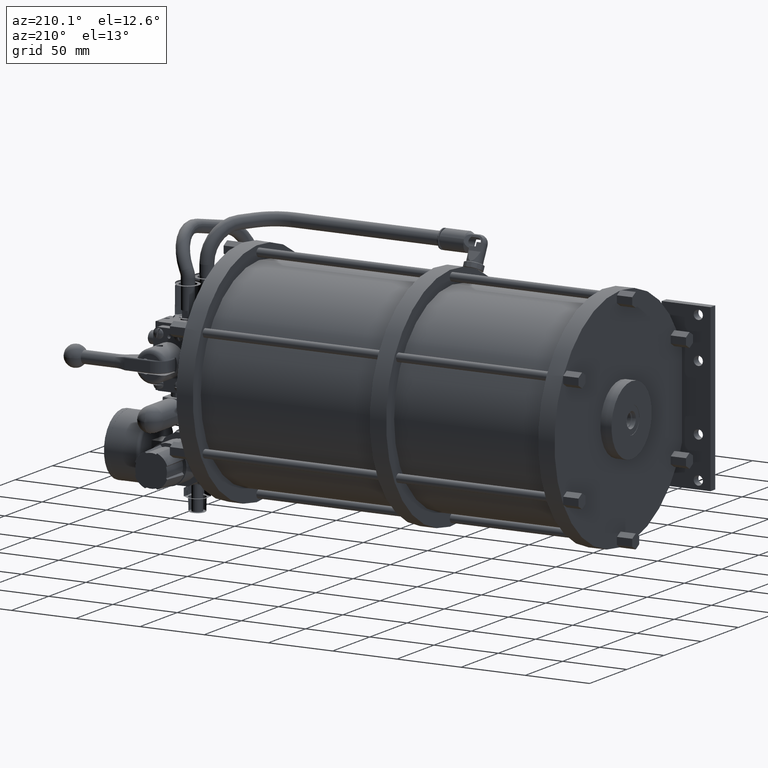
[diagram: clean part render]
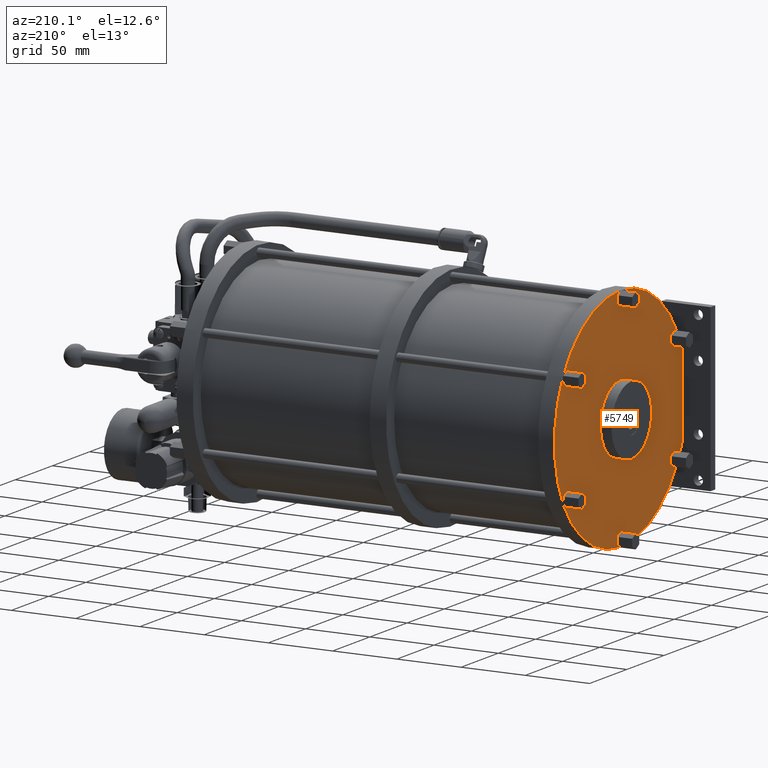
[diagram: same view with one face highlighted and labeled with its STEP entity id]
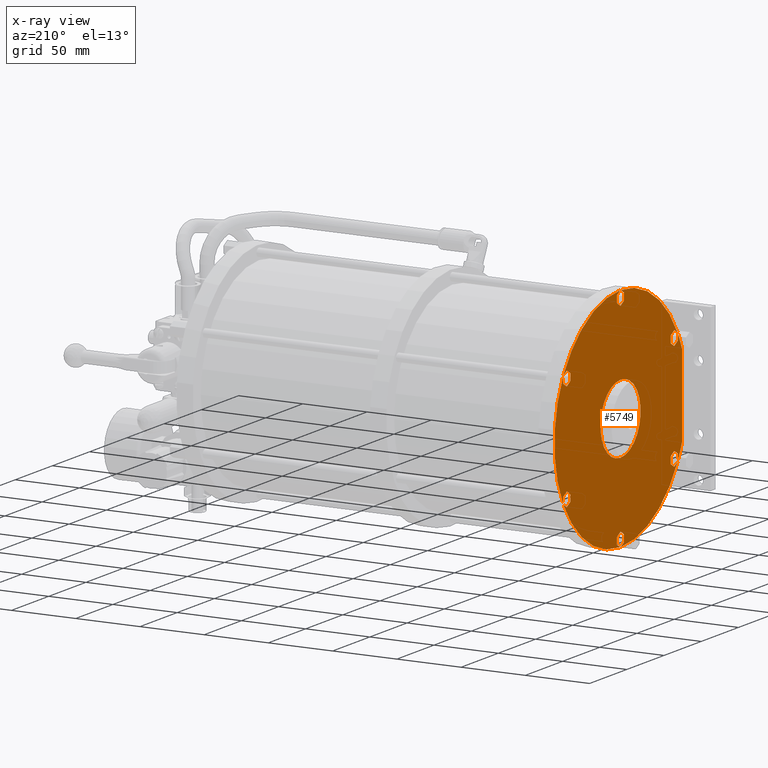
[diagram: x-ray of the same camera — body ghosted, the highlighted face saturated]
A machine part, auxiliary view. The second image highlights one B-rep face of the part: STEP entity #5749.
The next image is the same camera in x-ray: the body ghosted, the highlighted face saturated — about 0% of this face is hidden behind the body in this view.
In plain terms, the highlighted planar face has unit normal (1, 0, 0).
Its self-contained STEP definition (entity closure, byte-faithful):
#181=DIRECTION('',(0.E0,8.660254037844E-1,5.000000000001E-1));
#182=VECTOR('',#181,5.499261314029E0);
#183=CARTESIAN_POINT('',(-1.437386E2,1.563208040080E2,-1.907531934298E1));
#184=LINE('',#183,#182);
#185=DIRECTION('',(-8.597195091246E-13,8.660254037841E-1,-5.000000000006E-1));
#186=VECTOR('',#185,5.091129380952E0);
#187=CARTESIAN_POINT('',(-1.437386E2,1.610833040080E2,-1.632568868597E1));
#188=LINE('',#187,#186);
#189=CARTESIAN_POINT('',(-1.437386E2,8.89E1,-6.35E1));
#190=DIRECTION('',(1.E0,0.E0,0.E0));
#191=DIRECTION('',(0.E0,8.640249011329E-1,5.034490741100E-1));
#192=AXIS2_PLACEMENT_3D('',#189,#190,#191);
#194=DIRECTION('',(8.597195091258E-13,8.660254037848E-1,-4.999999999993E-1));
#195=VECTOR('',#194,5.091129380945E0);
#196=CARTESIAN_POINT('',(-1.437386E2,8.925345262214E1,2.514529534748E1));
#197=LINE('',#196,#195);
#198=DIRECTION('',(0.E0,-8.660254037844E-1,-5.000000000001E-1));
#199=VECTOR('',#198,5.499261314030E0);
#200=CARTESIAN_POINT('',(-1.437386E2,9.36625E1,1.710046934298E1));
#201=LINE('',#200,#199);
#202=DIRECTION('',(0.E0,-8.660254037844E-1,5.000000000001E-1));
#203=VECTOR('',#202,5.499261314030E0);
#204=CARTESIAN_POINT('',(-1.437386E2,8.89E1,1.435083868597E1));
#205=LINE('',#204,#203);
#206=DIRECTION('',(-8.541369149115E-13,8.660254037846E-1,4.999999999998E-1));
#207=VECTOR('',#206,5.091129380941E0);
#208=CARTESIAN_POINT('',(-1.437386E2,8.41375E1,2.259973065702E1));
#209=LINE('',#208,#207);
#210=CARTESIAN_POINT('',(-1.437386E2,8.89E1,-6.35E1));
#211=DIRECTION('',(1.E0,0.E0,0.E0));
#212=DIRECTION('',(0.E0,-3.987237124642E-3,9.999920509385E-1));
#213=AXIS2_PLACEMENT_3D('',#210,#211,#212);
#215=DIRECTION('',(8.597195091141E-13,8.660254037806E-1,5.000000000066E-1));
#216=VECTOR('',#215,5.091129381015E0);
#217=CARTESIAN_POINT('',(-1.437386E2,1.230764861414E1,-1.887125337651E1));
#218=LINE('',#217,#216);
#219=DIRECTION('',(0.E0,8.660254037844E-1,-5.E-1));
#220=VECTOR('',#219,5.499261314031E0);
#221=CARTESIAN_POINT('',(-1.437386E2,1.671669599203E1,-1.632568868597E1));
#222=LINE('',#221,#220);
#223=DIRECTION('',(0.E0,-8.660254037851E-1,-4.999999999989E-1));
#224=VECTOR('',#223,5.499261314027E0);
#225=CARTESIAN_POINT('',(-1.437386E2,2.147919599203E1,-2.457458065702E1));
#226=LINE('',#225,#224);
#227=DIRECTION('',(0.E0,-8.660254037850E-1,4.999999999990E-1));
#228=VECTOR('',#227,5.499261314027E0);
#229=CARTESIAN_POINT('',(-1.437386E2,1.671669599203E1,-2.732421131402E1));
#230=LINE('',#229,#228);
#231=CARTESIAN_POINT('',(-1.437386E2,8.89E1,-6.35E1));
#232=DIRECTION('',(1.E0,0.E0,0.E0));
#233=DIRECTION('',(0.E0,-8.680121382575E-1,4.965429768284E-1));
#234=AXIS2_PLACEMENT_3D('',#231,#232,#233);
#236=DIRECTION('',(0.E0,-4.942929149766E-13,-1.E0));
#237=VECTOR('',#236,6.460993162055E1);
#238=CARTESIAN_POINT('',(-1.437386E2,6.350000000033E0,-3.119503418968E1));
#239=LINE('',#238,#237);
#240=CARTESIAN_POINT('',(-1.437386E2,8.89E1,-6.35E1));
#241=DIRECTION('',(1.E0,0.E0,0.E0));
#242=DIRECTION('',(0.E0,-9.312320916905E-1,-3.644266612169E-1));
#243=AXIS2_PLACEMENT_3D('',#240,#241,#242);
#245=DIRECTION('',(0.E0,8.660254037853E-1,4.999999999985E-1));
#246=VECTOR('',#245,5.499261314026E0);
#247=CARTESIAN_POINT('',(-1.437386E2,1.195419599203E1,-1.024254193430E2));
#248=LINE('',#247,#246);
#249=DIRECTION('',(0.E0,8.660254037853E-1,-4.999999999985E-1));
#250=VECTOR('',#249,5.499261314026E0);
#251=CARTESIAN_POINT('',(-1.437386E2,1.671669599203E1,-9.967578868598E1));
#252=LINE('',#251,#250);
#253=DIRECTION('',(0.E0,-8.660254037853E-1,-4.999999999985E-1));
#254=VECTOR('',#253,5.499261314026E0);
#255=CARTESIAN_POINT('',(-1.437386E2,2.147919599203E1,-1.079246806570E2));
#256=LINE('',#255,#254);
#257=DIRECTION('',(-8.597195091276E-13,-8.660254037855E-1,4.999999999982E-1));
#258=VECTOR('',#257,5.091129380934E0);
#259=CARTESIAN_POINT('',(-1.437386E2,1.671669599203E1,-1.106743113140E2));
#260=LINE('',#259,#258);
#261=CARTESIAN_POINT('',(-1.437386E2,8.89E1,-6.35E1));
#262=DIRECTION('',(1.E0,0.E0,0.E0));
#263=DIRECTION('',(0.E0,-8.640249011329E-1,-5.034490741100E-1));
#264=AXIS2_PLACEMENT_3D('',#261,#262,#263);
#266=DIRECTION('',(8.597195091267E-13,-8.660254037848E-1,4.999999999994E-1));
#267=VECTOR('',#266,5.091129380940E0);
#268=CARTESIAN_POINT('',(-1.437386E2,8.854654737785E1,-1.521452953475E2));
#269=LINE('',#268,#267);
#270=DIRECTION('',(0.E0,8.660254037853E-1,4.999999999986E-1));
#271=VECTOR('',#270,5.499261314024E0);
#272=CARTESIAN_POINT('',(-1.437386E2,8.41375E1,-1.441004693430E2));
#273=LINE('',#272,#271);
#274=DIRECTION('',(0.E0,8.660254037852E-1,-4.999999999986E-1));
#275=VECTOR('',#274,5.499261314024E0);
#276=CARTESIAN_POINT('',(-1.437386E2,8.89E1,-1.413508386860E2));
#277=LINE('',#276,#275);
#278=DIRECTION('',(-8.541369149110E-13,-8.660254037850E-1,-4.999999999991E-1));
#279=VECTOR('',#278,5.091129380943E0);
#280=CARTESIAN_POINT('',(-1.437386E2,9.36625E1,-1.495997306570E2));
#281=LINE('',#280,#279);
#282=CARTESIAN_POINT('',(-1.437386E2,8.89E1,-6.35E1));
#283=DIRECTION('',(1.E0,0.E0,0.E0));
#284=DIRECTION('',(0.E0,3.987237124642E-3,-9.999920509385E-1));
#285=AXIS2_PLACEMENT_3D('',#282,#283,#284);
#287=DIRECTION('',(8.597195091251E-13,-8.660254037846E-1,-4.999999999998E-1));
#288=VECTOR('',#287,5.091129380950E0);
#289=CARTESIAN_POINT('',(-1.437386E2,1.654923513858E2,-1.081287466235E2));
#290=LINE('',#289,#288);
#291=DIRECTION('',(0.E0,-8.660254037852E-1,4.999999999987E-1));
#292=VECTOR('',#291,5.499261314024E0);
#293=CARTESIAN_POINT('',(-1.437386E2,1.610833040080E2,-1.106743113140E2));
#294=LINE('',#293,#292);
#295=DIRECTION('',(0.E0,8.660254037852E-1,4.999999999986E-1));
#296=VECTOR('',#295,5.499261314024E0);
#297=CARTESIAN_POINT('',(-1.437386E2,1.563208040080E2,-1.024254193430E2));
#298=LINE('',#297,#296);
#299=DIRECTION('',(0.E0,8.660254037856E-1,-4.999999999980E-1));
#300=VECTOR('',#299,5.499261314031E0);
#301=CARTESIAN_POINT('',(-1.437386E2,1.610833040080E2,-9.967578868598E1));
#302=LINE('',#301,#300);
#303=CARTESIAN_POINT('',(-1.437386E2,8.89E1,-6.35E1));
#304=DIRECTION('',(1.E0,0.E0,0.E0));
#305=DIRECTION('',(0.E0,8.680121382576E-1,-4.965429768283E-1));
#306=AXIS2_PLACEMENT_3D('',#303,#304,#305);
#308=DIRECTION('',(0.E0,-8.660254037853E-1,-4.999999999984E-1));
#309=VECTOR('',#308,5.499261314033E0);
#310=CARTESIAN_POINT('',(-1.437386E2,1.658458040080E2,-2.457458065702E1));
#311=LINE('',#310,#309);
#312=DIRECTION('',(0.E0,-8.660254037849E-1,4.999999999991E-1));
#313=VECTOR('',#312,5.499261314026E0);
#314=CARTESIAN_POINT('',(-1.437386E2,1.610833040080E2,-2.732421131402E1));
#315=LINE('',#314,#313);
#316=CARTESIAN_POINT('',(-1.437386E2,8.89E1,-6.35E1));
#317=DIRECTION('',(-1.E0,0.E0,0.E0));
#318=DIRECTION('',(0.E0,0.E0,1.E0));
#319=AXIS2_PLACEMENT_3D('',#316,#317,#318);
#321=CARTESIAN_POINT('',(-1.437386E2,8.89E1,-6.35E1));
#322=DIRECTION('',(-1.E0,0.E0,0.E0));
#323=DIRECTION('',(0.E0,0.E0,-1.E0));
#324=AXIS2_PLACEMENT_3D('',#321,#322,#323);
#334=DIRECTION('',(0.E0,2.584138833146E-14,1.E0));
#335=VECTOR('',#334,5.499261314030E0);
#336=CARTESIAN_POINT('',(-1.437386E2,1.563208040080E2,-2.457458065701E1));
#337=LINE('',#336,#335);
#354=DIRECTION('',(8.597195091268E-13,3.517034355519E-13,-1.E0));
#355=VECTOR('',#354,5.091129380940E0);
#356=CARTESIAN_POINT('',(-1.437386E2,1.658458040080E2,-1.948345127608E1));
#357=LINE('',#356,#355);
#416=DIRECTION('',(-8.597195091265E-13,-3.014600876158E-13,-1.E0));
#417=VECTOR('',#416,5.091129380941E0);
#418=CARTESIAN_POINT('',(-1.437386E2,1.658458040080E2,-1.024254193430E2));
#419=LINE('',#418,#417);
#436=DIRECTION('',(0.E0,2.584138833142E-14,1.E0));
#437=VECTOR('',#436,5.499261314038E0);
#438=CARTESIAN_POINT('',(-1.437386E2,1.563208040080E2,-1.079246806570E2));
#439=LINE('',#438,#437);
#493=DIRECTION('',(0.E0,-2.842552716457E-14,-1.E0));
#494=VECTOR('',#493,5.499261314038E0);
#495=CARTESIAN_POINT('',(-1.437386E2,9.36625E1,-1.441004693430E2));
#496=LINE('',#495,#494);
#513=DIRECTION('',(0.E0,2.325724949828E-14,1.E0));
#514=VECTOR('',#513,5.499261314038E0);
#515=CARTESIAN_POINT('',(-1.437386E2,8.41375E1,-1.495997306570E2));
#516=LINE('',#515,#514);
#566=DIRECTION('',(0.E0,-2.777949245628E-14,-1.E0));
#567=VECTOR('',#566,5.499261314038E0);
#568=CARTESIAN_POINT('',(-1.437386E2,2.147919599203E1,-1.024254193430E2));
#569=LINE('',#568,#567);
#582=DIRECTION('',(8.597195091271E-13,9.012400536020E-13,1.E0));
#583=VECTOR('',#582,5.091129380938E0);
#584=CARTESIAN_POINT('',(-1.437386E2,1.195419599202E1,-1.075165487239E2));
#585=LINE('',#584,#583);
#3884=DIRECTION('',(-8.597195091405E-13,-9.591245773849E-12,1.E0));
#3885=VECTOR('',#3884,5.091129380858E0);
#3886=CARTESIAN_POINT('',(-1.437386E2,1.195419599203E1,-2.457458065701E1));
#3887=LINE('',#3886,#3885);
#3904=DIRECTION('',(0.E0,-2.713345774803E-14,-1.E0));
#3905=VECTOR('',#3904,5.499261314030E0);
#3906=CARTESIAN_POINT('',(-1.437386E2,2.147919599203E1,-1.907531934298E1));
#3907=LINE('',#3906,#3905);
#3961=DIRECTION('',(0.E0,2.325724949831E-14,1.E0));
#3962=VECTOR('',#3961,5.499261314030E0);
#3963=CARTESIAN_POINT('',(-1.437386E2,8.41375E1,1.710046934298E1));
#3964=LINE('',#3963,#3962);
#3981=DIRECTION('',(0.E0,-2.584138833146E-14,-1.E0));
#3982=VECTOR('',#3981,5.499261314030E0);
#3983=CARTESIAN_POINT('',(-1.437386E2,9.36625E1,2.259973065701E1));
#3984=LINE('',#3983,#3982);
#4695=CARTESIAN_POINT('',(-1.437386E2,6.350000000033E0,-3.119503418968E1));
#4696=CARTESIAN_POINT('',(-1.437386E2,6.350000000001E0,-9.580496581023E1));
#4697=VERTEX_POINT('',#4695);
#4698=VERTEX_POINT('',#4696);
#5045=CARTESIAN_POINT('',(-1.437386E2,1.658458040080E2,-1.948345127607E1));
#5046=CARTESIAN_POINT('',(-1.437386E2,1.654923513858E2,-1.887125337643E1));
#5047=VERTEX_POINT('',#5045);
#5048=VERTEX_POINT('',#5046);
#5049=CARTESIAN_POINT('',(-1.437386E2,1.658458040080E2,-1.075165487239E2));
#5050=VERTEX_POINT('',#5049);
#5051=CARTESIAN_POINT('',(-1.437386E2,1.654923513858E2,-1.081287466236E2));
#5052=VERTEX_POINT('',#5051);
#5053=CARTESIAN_POINT('',(-1.437386E2,8.925345262215E1,-1.521452953475E2));
#5054=VERTEX_POINT('',#5053);
#5055=CARTESIAN_POINT('',(-1.437386E2,8.854654737785E1,-1.521452953475E2));
#5056=VERTEX_POINT('',#5055);
#5057=CARTESIAN_POINT('',(-1.437386E2,1.230764861417E1,-1.081287466236E2));
#5058=VERTEX_POINT('',#5057);
#5059=CARTESIAN_POINT('',(-1.437386E2,1.195419599202E1,-1.075165487239E2));
#5060=VERTEX_POINT('',#5059);
#5061=CARTESIAN_POINT('',(-1.437386E2,1.195419599202E1,-1.948345127607E1));
#5062=VERTEX_POINT('',#5061);
#5063=CARTESIAN_POINT('',(-1.437386E2,1.230764861418E1,-1.887125337643E1));
#5064=VERTEX_POINT('',#5063);
#5065=CARTESIAN_POINT('',(-1.437386E2,8.854654737785E1,2.514529534749E1));
#5066=VERTEX_POINT('',#5065);
#5067=CARTESIAN_POINT('',(-1.437386E2,8.925345262215E1,2.514529534749E1));
#5068=VERTEX_POINT('',#5067);
#5071=CARTESIAN_POINT('',(-1.437386E2,1.610833040080E2,-1.632568868597E1));
#5072=VERTEX_POINT('',#5071);
#5077=CARTESIAN_POINT('',(-1.437386E2,1.563208040080E2,-1.907531934298E1));
#5078=VERTEX_POINT('',#5077);
#5079=CARTESIAN_POINT('',(-1.437386E2,1.563208040080E2,-2.457458065701E1));
#5080=VERTEX_POINT('',#5079);
#5081=CARTESIAN_POINT('',(-1.437386E2,1.610833040080E2,-2.732421131402E1));
#5082=VERTEX_POINT('',#5081);
#5083=CARTESIAN_POINT('',(-1.437386E2,1.658458040080E2,-2.457458065702E1));
#5084=VERTEX_POINT('',#5083);
#5085=CARTESIAN_POINT('',(-1.437386E2,1.658458040080E2,-1.024254193430E2));
#5086=VERTEX_POINT('',#5085);
#5087=CARTESIAN_POINT('',(-1.437386E2,1.610833040080E2,-9.967578868598E1));
#5088=VERTEX_POINT('',#5087);
#5089=CARTESIAN_POINT('',(-1.437386E2,1.563208040080E2,-1.024254193430E2));
#5090=VERTEX_POINT('',#5089);
#5091=CARTESIAN_POINT('',(-1.437386E2,1.563208040080E2,-1.079246806570E2));
#5092=VERTEX_POINT('',#5091);
#5093=CARTESIAN_POINT('',(-1.437386E2,1.610833040080E2,-1.106743113140E2));
#5094=VERTEX_POINT('',#5093);
#5095=CARTESIAN_POINT('',(-1.437386E2,9.36625E1,-1.495997306570E2));
#5096=VERTEX_POINT('',#5095);
#5097=CARTESIAN_POINT('',(-1.437386E2,9.36625E1,-1.441004693430E2));
#5098=VERTEX_POINT('',#5097);
#5099=CARTESIAN_POINT('',(-1.437386E2,8.89E1,-1.413508386860E2));
#5100=VERTEX_POINT('',#5099);
#5101=CARTESIAN_POINT('',(-1.437386E2,8.41375E1,-1.441004693430E2));
#5102=VERTEX_POINT('',#5101);
#5103=CARTESIAN_POINT('',(-1.437386E2,8.41375E1,-1.495997306570E2));
#5104=VERTEX_POINT('',#5103);
#5105=CARTESIAN_POINT('',(-1.437386E2,1.671669599203E1,-1.106743113140E2));
#5106=VERTEX_POINT('',#5105);
#5107=CARTESIAN_POINT('',(-1.437386E2,2.147919599203E1,-1.079246806570E2));
#5108=VERTEX_POINT('',#5107);
#5109=CARTESIAN_POINT('',(-1.437386E2,2.147919599203E1,-1.024254193430E2));
#5110=VERTEX_POINT('',#5109);
#5111=CARTESIAN_POINT('',(-1.437386E2,1.671669599203E1,-9.967578868598E1));
#5112=VERTEX_POINT('',#5111);
#5113=CARTESIAN_POINT('',(-1.437386E2,1.195419599203E1,-1.024254193430E2));
#5114=VERTEX_POINT('',#5113);
#5115=CARTESIAN_POINT('',(-1.437386E2,1.195419599203E1,-2.457458065701E1));
#5116=VERTEX_POINT('',#5115);
#5117=CARTESIAN_POINT('',(-1.437386E2,1.671669599203E1,-2.732421131402E1));
#5118=VERTEX_POINT('',#5117);
#5119=CARTESIAN_POINT('',(-1.437386E2,2.147919599203E1,-2.457458065702E1));
#5120=VERTEX_POINT('',#5119);
#5121=CARTESIAN_POINT('',(-1.437386E2,2.147919599203E1,-1.907531934298E1));
#5122=VERTEX_POINT('',#5121);
#5123=CARTESIAN_POINT('',(-1.437386E2,1.671669599203E1,-1.632568868597E1));
#5124=VERTEX_POINT('',#5123);
#5125=CARTESIAN_POINT('',(-1.437386E2,8.41375E1,2.259973065702E1));
#5126=VERTEX_POINT('',#5125);
#5127=CARTESIAN_POINT('',(-1.437386E2,8.41375E1,1.710046934298E1));
#5128=VERTEX_POINT('',#5127);
#5129=CARTESIAN_POINT('',(-1.437386E2,8.89E1,1.435083868597E1));
#5130=VERTEX_POINT('',#5129);
#5131=CARTESIAN_POINT('',(-1.437386E2,9.36625E1,1.710046934298E1));
#5132=VERTEX_POINT('',#5131);
#5133=CARTESIAN_POINT('',(-1.437386E2,9.36625E1,2.259973065701E1));
#5134=VERTEX_POINT('',#5133);
#5135=CARTESIAN_POINT('',(-1.437386E2,8.89E1,-3.65379E1));
#5136=CARTESIAN_POINT('',(-1.437386E2,8.89E1,-9.04621E1));
#5137=VERTEX_POINT('',#5135);
#5138=VERTEX_POINT('',#5136);
#5649=CARTESIAN_POINT('',(-1.437386E2,9.198408584315E1,-6.35E1));
#5650=DIRECTION('',(1.E0,0.E0,0.E0));
#5651=DIRECTION('',(0.E0,0.E0,-1.E0));
#5652=AXIS2_PLACEMENT_3D('',#5649,#5650,#5651);
#5653=PLANE('',#5652);
#5655=ORIENTED_EDGE('',*,*,#5654,.T.);
#5657=ORIENTED_EDGE('',*,*,#5656,.T.);
#5659=ORIENTED_EDGE('',*,*,#5658,.T.);
#5661=ORIENTED_EDGE('',*,*,#5660,.T.);
#5663=ORIENTED_EDGE('',*,*,#5662,.T.);
#5665=ORIENTED_EDGE('',*,*,#5664,.T.);
#5667=ORIENTED_EDGE('',*,*,#5666,.T.);
#5669=ORIENTED_EDGE('',*,*,#5668,.T.);
#5671=ORIENTED_EDGE('',*,*,#5670,.T.);
#5673=ORIENTED_EDGE('',*,*,#5672,.T.);
#5675=ORIENTED_EDGE('',*,*,#5674,.T.);
#5677=ORIENTED_EDGE('',*,*,#5676,.T.);
#5679=ORIENTED_EDGE('',*,*,#5678,.T.);
#5681=ORIENTED_EDGE('',*,*,#5680,.T.);
#5683=ORIENTED_EDGE('',*,*,#5682,.T.);
#5685=ORIENTED_EDGE('',*,*,#5684,.T.);
#5687=ORIENTED_EDGE('',*,*,#5686,.T.);
#5688=ORIENTED_EDGE('',*,*,#5548,.T.);
#5690=ORIENTED_EDGE('',*,*,#5689,.T.);
#5692=ORIENTED_EDGE('',*,*,#5691,.T.);
#5694=ORIENTED_EDGE('',*,*,#5693,.T.);
#5696=ORIENTED_EDGE('',*,*,#5695,.T.);
#5698=ORIENTED_EDGE('',*,*,#5697,.T.);
#5700=ORIENTED_EDGE('',*,*,#5699,.T.);
#5702=ORIENTED_EDGE('',*,*,#5701,.T.);
#5704=ORIENTED_EDGE('',*,*,#5703,.T.);
#5706=ORIENTED_EDGE('',*,*,#5705,.T.);
#5708=ORIENTED_EDGE('',*,*,#5707,.T.);
#5710=ORIENTED_EDGE('',*,*,#5709,.T.);
#5712=ORIENTED_EDGE('',*,*,#5711,.T.);
#5714=ORIENTED_EDGE('',*,*,#5713,.T.);
#5716=ORIENTED_EDGE('',*,*,#5715,.T.);
#5718=ORIENTED_EDGE('',*,*,#5717,.T.);
#5720=ORIENTED_EDGE('',*,*,#5719,.T.);
#5722=ORIENTED_EDGE('',*,*,#5721,.T.);
#5724=ORIENTED_EDGE('',*,*,#5723,.T.);
#5726=ORIENTED_EDGE('',*,*,#5725,.T.);
#5728=ORIENTED_EDGE('',*,*,#5727,.T.);
#5730=ORIENTED_EDGE('',*,*,#5729,.T.);
#5732=ORIENTED_EDGE('',*,*,#5731,.T.);
#5734=ORIENTED_EDGE('',*,*,#5733,.T.);
#5736=ORIENTED_EDGE('',*,*,#5735,.T.);
#5738=ORIENTED_EDGE('',*,*,#5737,.T.);
#5740=ORIENTED_EDGE('',*,*,#5739,.T.);
#5741=EDGE_LOOP('',(#5655,#5657,#5659,#5661,#5663,#5665,#5667,#5669,#5671,#5673,
#5675,#5677,#5679,#5681,#5683,#5685,#5687,#5688,#5690,#5692,#5694,#5696,#5698,
#5700,#5702,#5704,#5706,#5708,#5710,#5712,#5714,#5716,#5718,#5720,#5722,#5724,
#5726,#5728,#5730,#5732,#5734,#5736,#5738,#5740));
#5742=FACE_OUTER_BOUND('',#5741,.F.);
#5744=ORIENTED_EDGE('',*,*,#5743,.T.);
#5746=ORIENTED_EDGE('',*,*,#5745,.T.);
#5747=EDGE_LOOP('',(#5744,#5746));
#5748=FACE_BOUND('',#5747,.F.);
#5749=ADVANCED_FACE('',(#5742,#5748),#5653,.F.);
#193=CIRCLE('',#192,8.8646E1);
#214=CIRCLE('',#213,8.8646E1);
#235=CIRCLE('',#234,8.8646E1);
#244=CIRCLE('',#243,8.8646E1);
#265=CIRCLE('',#264,8.8646E1);
#286=CIRCLE('',#285,8.8646E1);
#307=CIRCLE('',#306,8.8646E1);
#320=CIRCLE('',#319,2.69621E1);
#325=CIRCLE('',#324,2.69621E1);
#5548=EDGE_CURVE('',#4697,#4698,#239,.T.);
#5654=EDGE_CURVE('',#5078,#5072,#184,.T.);
#5656=EDGE_CURVE('',#5072,#5048,#188,.T.);
#5658=EDGE_CURVE('',#5048,#5068,#193,.T.);
#5660=EDGE_CURVE('',#5068,#5134,#197,.T.);
#5662=EDGE_CURVE('',#5134,#5132,#3984,.T.);
#5664=EDGE_CURVE('',#5132,#5130,#201,.T.);
#5666=EDGE_CURVE('',#5130,#5128,#205,.T.);
#5668=EDGE_CURVE('',#5128,#5126,#3964,.T.);
#5670=EDGE_CURVE('',#5126,#5066,#209,.T.);
#5672=EDGE_CURVE('',#5066,#5064,#214,.T.);
#5674=EDGE_CURVE('',#5064,#5124,#218,.T.);
#5676=EDGE_CURVE('',#5124,#5122,#222,.T.);
#5678=EDGE_CURVE('',#5122,#5120,#3907,.T.);
#5680=EDGE_CURVE('',#5120,#5118,#226,.T.);
#5682=EDGE_CURVE('',#5118,#5116,#230,.T.);
#5684=EDGE_CURVE('',#5116,#5062,#3887,.T.);
#5686=EDGE_CURVE('',#5062,#4697,#235,.T.);
#5689=EDGE_CURVE('',#4698,#5060,#244,.T.);
#5691=EDGE_CURVE('',#5060,#5114,#585,.T.);
#5693=EDGE_CURVE('',#5114,#5112,#248,.T.);
#5695=EDGE_CURVE('',#5112,#5110,#252,.T.);
#5697=EDGE_CURVE('',#5110,#5108,#569,.T.);
#5699=EDGE_CURVE('',#5108,#5106,#256,.T.);
#5701=EDGE_CURVE('',#5106,#5058,#260,.T.);
#5703=EDGE_CURVE('',#5058,#5056,#265,.T.);
#5705=EDGE_CURVE('',#5056,#5104,#269,.T.);
#5707=EDGE_CURVE('',#5104,#5102,#516,.T.);
#5709=EDGE_CURVE('',#5102,#5100,#273,.T.);
#5711=EDGE_CURVE('',#5100,#5098,#277,.T.);
#5713=EDGE_CURVE('',#5098,#5096,#496,.T.);
#5715=EDGE_CURVE('',#5096,#5054,#281,.T.);
#5717=EDGE_CURVE('',#5054,#5052,#286,.T.);
#5719=EDGE_CURVE('',#5052,#5094,#290,.T.);
#5721=EDGE_CURVE('',#5094,#5092,#294,.T.);
#5723=EDGE_CURVE('',#5092,#5090,#439,.T.);
#5725=EDGE_CURVE('',#5090,#5088,#298,.T.);
#5727=EDGE_CURVE('',#5088,#5086,#302,.T.);
#5729=EDGE_CURVE('',#5086,#5050,#419,.T.);
#5731=EDGE_CURVE('',#5050,#5047,#307,.T.);
#5733=EDGE_CURVE('',#5047,#5084,#357,.T.);
#5735=EDGE_CURVE('',#5084,#5082,#311,.T.);
#5737=EDGE_CURVE('',#5082,#5080,#315,.T.);
#5739=EDGE_CURVE('',#5080,#5078,#337,.T.);
#5743=EDGE_CURVE('',#5137,#5138,#320,.T.);
#5745=EDGE_CURVE('',#5138,#5137,#325,.T.);